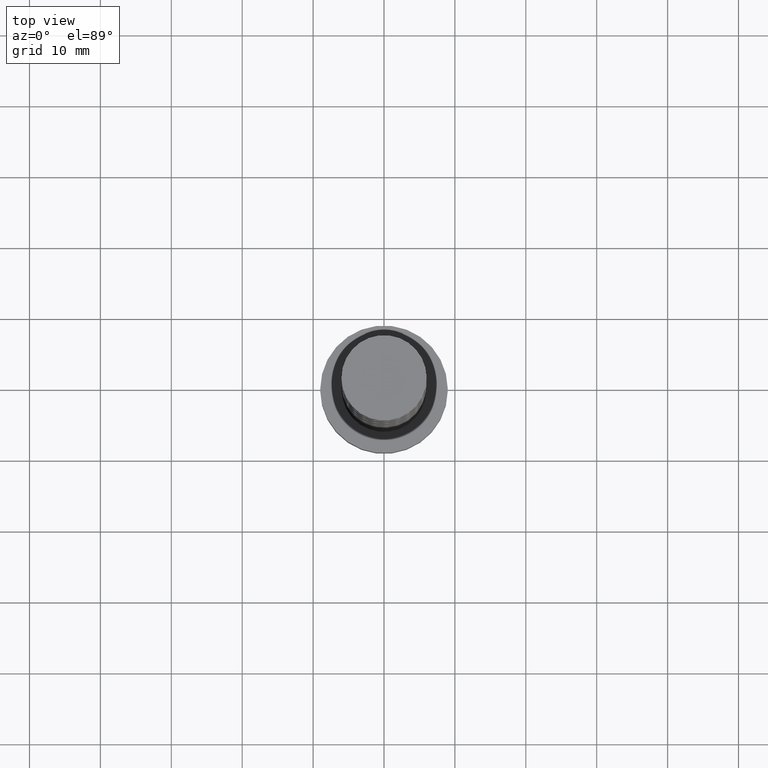
[diagram: clean part render]
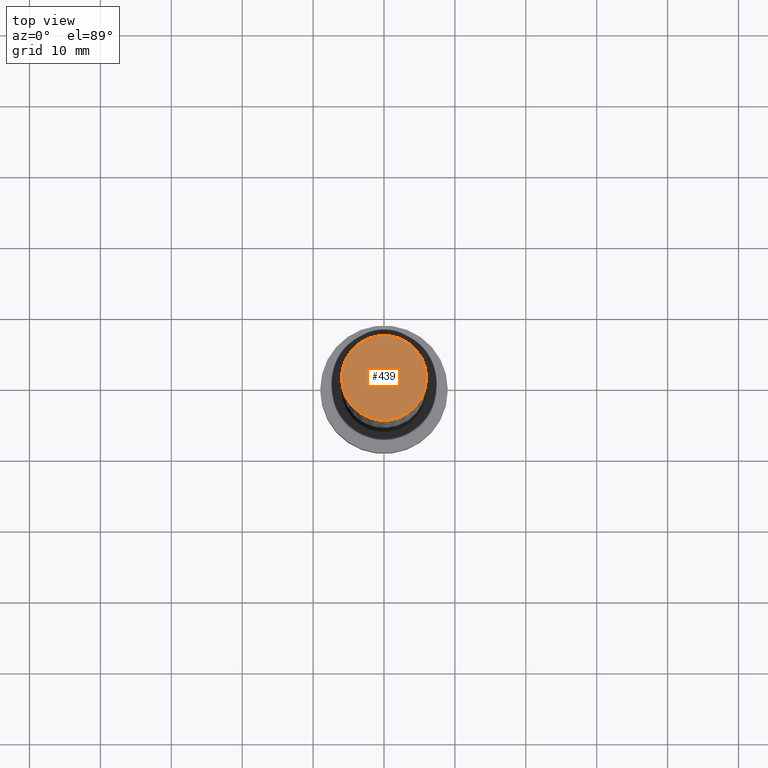
[diagram: same view with one face highlighted and labeled with its STEP entity id]
A machine part, top view. The second image highlights one B-rep face of the part: STEP entity #439.
In plain terms, the highlighted planar face has unit normal (0, 0, 1).
Its self-contained STEP definition (entity closure, byte-faithful):
#49 = CIRCLE ( 'NONE', #1274, 6.000000000000000888 ) ;
#118 = VERTEX_POINT ( 'NONE', #1215 ) ;
#423 = EDGE_CURVE ( 'NONE', #118, #945, #49, .T. ) ;
#439 = ADVANCED_FACE ( 'NONE', ( #1448 ), #508, .T. ) ;
#450 = DIRECTION ( 'NONE',  ( 1.000000000000000000, 0.000000000000000000, 0.000000000000000000 ) ) ;
#508 = PLANE ( 'NONE',  #806 ) ;
#556 = CARTESIAN_POINT ( 'NONE',  ( 0.000000000000000000, 0.000000000000000000, 100.0000000000000000 ) ) ;
#586 = CIRCLE ( 'NONE', #1144, 6.000000000000000888 ) ;
#636 = DIRECTION ( 'NONE',  ( 1.000000000000000000, 0.000000000000000000, 0.000000000000000000 ) ) ;
#654 = DIRECTION ( 'NONE',  ( 0.000000000000000000, 0.000000000000000000, 1.000000000000000000 ) ) ;
#657 = ORIENTED_EDGE ( 'NONE', *, *, #926, .T. ) ;
#776 = DIRECTION ( 'NONE',  ( 0.000000000000000000, 0.000000000000000000, 1.000000000000000000 ) ) ;
#806 = AXIS2_PLACEMENT_3D ( 'NONE', #1084, #1233, #1329 ) ;
#926 = EDGE_CURVE ( 'NONE', #945, #118, #586, .T. ) ;
#945 = VERTEX_POINT ( 'NONE', #1368 ) ;
#1084 = CARTESIAN_POINT ( 'NONE',  ( 0.000000000000000000, 0.000000000000000000, 100.0000000000000000 ) ) ;
#1144 = AXIS2_PLACEMENT_3D ( 'NONE', #556, #776, #450 ) ;
#1215 = CARTESIAN_POINT ( 'NONE',  ( -6.000000000000000888, 0.000000000000000000, 100.0000000000000000 ) ) ;
#1233 = DIRECTION ( 'NONE',  ( 0.000000000000000000, 0.000000000000000000, 1.000000000000000000 ) ) ;
#1242 = CARTESIAN_POINT ( 'NONE',  ( 0.000000000000000000, 0.000000000000000000, 100.0000000000000000 ) ) ;
#1274 = AXIS2_PLACEMENT_3D ( 'NONE', #1242, #654, #636 ) ;
#1327 = ORIENTED_EDGE ( 'NONE', *, *, #423, .T. ) ;
#1329 = DIRECTION ( 'NONE',  ( 1.000000000000000000, 0.000000000000000000, -0.000000000000000000 ) ) ;
#1368 = CARTESIAN_POINT ( 'NONE',  ( 6.000000000000000888, 7.347880794884119736E-16, 100.0000000000000000 ) ) ;
#1390 = EDGE_LOOP ( 'NONE', ( #1327, #657 ) ) ;
#1448 = FACE_OUTER_BOUND ( 'NONE', #1390, .T. ) ;